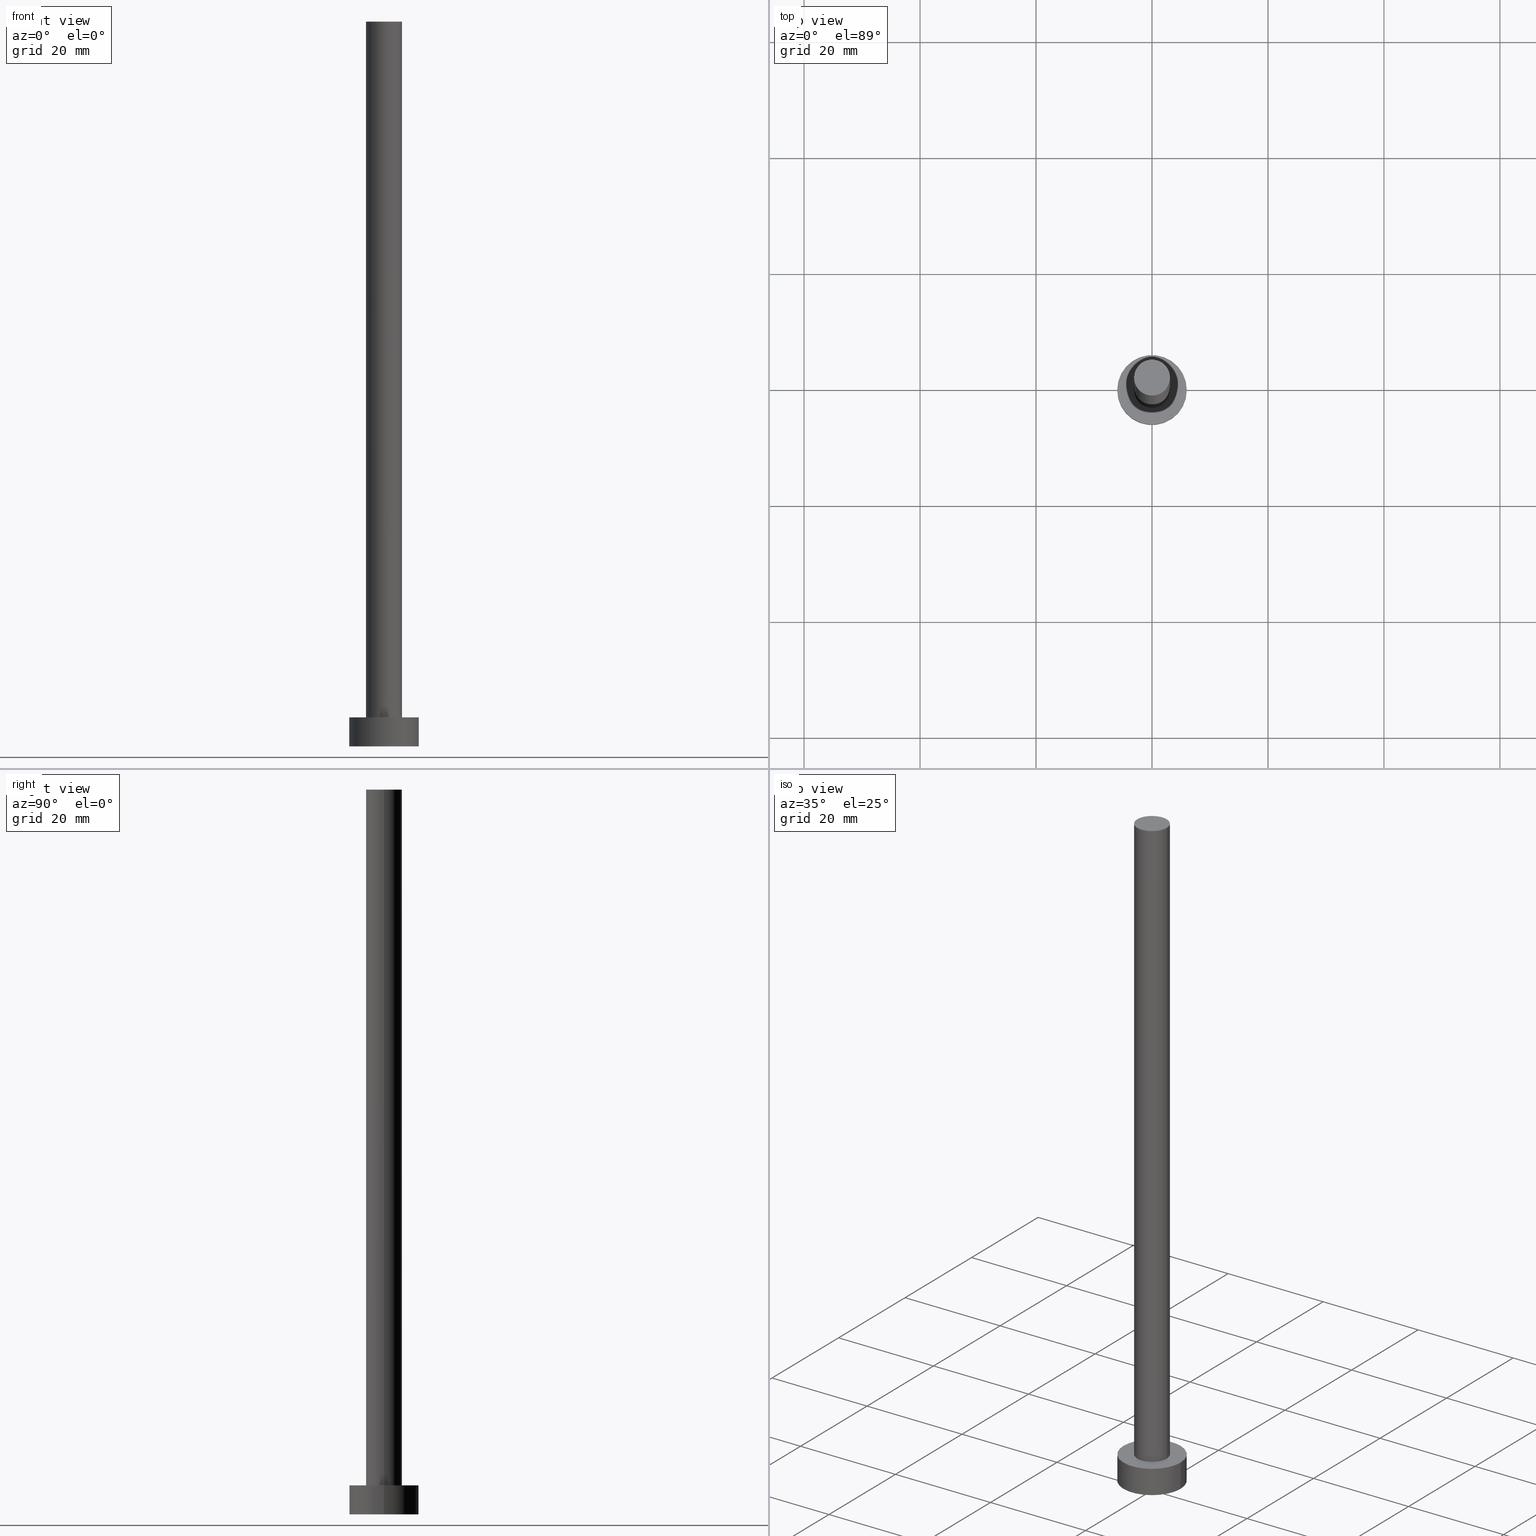
[diagram: canonical four-view strip — front | top / right | iso, engineering-drawing reading convention]
A machine part, canonical four-view strip (front | top / right | iso — engineering-drawing reading convention). The complete STEP part file that produces these views, byte-faithful:
ISO-10303-21;
HEADER;
FILE_DESCRIPTION (( 'STEP AP203' ),
    '1' );
FILE_NAME ('60bd.STEP',
    '2023-02-13T12:36:25',
    ( '' ),
    ( '' ),
    'SwSTEP 2.0',
    'SolidWorks 2019',
    '' );
FILE_SCHEMA (( 'CONFIG_CONTROL_DESIGN' ));
ENDSEC;

DATA;
#1 = CARTESIAN_POINT ( 'NONE',  ( 0.000000000000000000, 0.000000000000000000, 0.000000000000000000 ) ) ;
#2 = CIRCLE ( 'NONE', #139, 3.100000000000000089 ) ;
#3 = ORIENTED_EDGE ( 'NONE', *, *, #42, .T. ) ;
#4 = DIRECTION ( 'NONE',  ( 0.000000000000000000, 0.000000000000000000, 1.000000000000000000 ) ) ;
#5 = PRODUCT ( '60bd', '60bd', '', ( #183 ) ) ;
#6 = PERSON ( 'NEUR�EN�', 'NEUR�EN�', 'NEUR�EN�', ('NEUR�EN�'), ('NEUR�EN�'), ('NEUR�EN�') ) ;
#7 = CARTESIAN_POINT ( 'NONE',  ( 0.000000000000000000, 0.000000000000000000, 125.0000000000000000 ) ) ;
#8 = LINE ( 'NONE', #80, #126 ) ;
#9 = EDGE_CURVE ( 'NONE', #189, #236, #89, .T. ) ;
#10 = AXIS2_PLACEMENT_3D ( 'NONE', #157, #26, #44 ) ;
#11 = CARTESIAN_POINT ( 'NONE',  ( 0.000000000000000000, 0.000000000000000000, 125.0000000000000000 ) ) ;
#12 = APPROVAL_STATUS ( 'not_yet_approved' ) ;
#13 = ORIENTED_EDGE ( 'NONE', *, *, #55, .T. ) ;
#14 = CLOSED_SHELL ( 'NONE', ( #225, #150, #24, #76, #65, #185, #124 ) ) ;
#15 = DATE_TIME_ROLE ( 'creation_date' ) ;
#16 = COORDINATED_UNIVERSAL_TIME_OFFSET ( 1, 0, .AHEAD. ) ;
#17 = DIRECTION ( 'NONE',  ( 0.000000000000000000, 0.000000000000000000, 1.000000000000000000 ) ) ;
#18 = UNCERTAINTY_MEASURE_WITH_UNIT (LENGTH_MEASURE( 1.000000000000000082E-05 ), #159, 'distance_accuracy_value', 'NONE');
#19 = ORIENTED_EDGE ( 'NONE', *, *, #177, .F. ) ;
#20 = DIRECTION ( 'NONE',  ( -1.000000000000000000, 0.000000000000000000, 0.000000000000000000 ) ) ;
#21 = PRODUCT_DEFINITION_FORMATION_WITH_SPECIFIED_SOURCE ( 'LIBOVOLN�', '', #5, .NOT_KNOWN. ) ;
#22 = CARTESIAN_POINT ( 'NONE',  ( -6.000000000000000888, 0.000000000000000000, 5.000000000000000000 ) ) ;
#23 = VERTEX_POINT ( 'NONE', #253 ) ;
#24 = ADVANCED_FACE ( 'NONE', ( #56 ), #235, .T. ) ;
#25 = VECTOR ( 'NONE', #202, 1000.000000000000000 ) ;
#26 = DIRECTION ( 'NONE',  ( 0.000000000000000000, 0.000000000000000000, 1.000000000000000000 ) ) ;
#27 = APPROVAL ( #12, 'NEUR�EN�' ) ;
#28 = DIRECTION ( 'NONE',  ( 1.000000000000000000, 0.000000000000000000, 0.000000000000000000 ) ) ;
#29 = EDGE_LOOP ( 'NONE', ( #228, #170, #70, #250 ) ) ;
#30 = PERSON_AND_ORGANIZATION_ROLE ( 'creator' ) ;
#31 = COORDINATED_UNIVERSAL_TIME_OFFSET ( 1, 0, .AHEAD. ) ;
#32 = CC_DESIGN_APPROVAL ( #216, ( #50 ) ) ;
#33 = CALENDAR_DATE ( 2023, 13, 2 ) ;
#34 = FACE_OUTER_BOUND ( 'NONE', #167, .T. ) ;
#35 = LOCAL_TIME ( 13, 36, 25.00000000000000000, #121 ) ;
#36 = ORIENTED_EDGE ( 'NONE', *, *, #55, .F. ) ;
#37 = CARTESIAN_POINT ( 'NONE',  ( 0.000000000000000000, 0.000000000000000000, 5.000000000000000000 ) ) ;
#38 = CARTESIAN_POINT ( 'NONE',  ( 0.000000000000000000, 0.000000000000000000, 5.000000000000000000 ) ) ;
#39 = CARTESIAN_POINT ( 'NONE',  ( 3.100000000000000089, 3.796405077356794918E-16, 5.000000000000000000 ) ) ;
#40 = EDGE_CURVE ( 'NONE', #23, #236, #247, .T. ) ;
#41 = CYLINDRICAL_SURFACE ( 'NONE', #119, 3.100000000000000089 ) ;
#42 = EDGE_CURVE ( 'NONE', #189, #154, #53, .T. ) ;
#43 = CARTESIAN_POINT ( 'NONE',  ( -3.100000000000000089, 0.000000000000000000, 5.000000000000000000 ) ) ;
#44 = DIRECTION ( 'NONE',  ( 1.000000000000000000, 0.000000000000000000, 0.000000000000000000 ) ) ;
#45 = DIRECTION ( 'NONE',  ( 0.000000000000000000, 0.000000000000000000, 1.000000000000000000 ) ) ;
#46 = CALENDAR_DATE ( 2023, 13, 2 ) ;
#47 = DATE_AND_TIME ( #48, #179 ) ;
#48 = CALENDAR_DATE ( 2023, 13, 2 ) ;
#49 = CARTESIAN_POINT ( 'NONE',  ( 0.000000000000000000, 0.000000000000000000, 0.000000000000000000 ) ) ;
#50 = SECURITY_CLASSIFICATION ( '', '', #85 ) ;
#51 = ORIENTED_EDGE ( 'NONE', *, *, #229, .T. ) ;
#52 = DIRECTION ( 'NONE',  ( 0.000000000000000000, 0.000000000000000000, 1.000000000000000000 ) ) ;
#53 = CIRCLE ( 'NONE', #214, 6.000000000000000888 ) ;
#54 = ORIENTED_EDGE ( 'NONE', *, *, #147, .T. ) ;
#55 = EDGE_CURVE ( 'NONE', #186, #74, #203, .T. ) ;
#56 = FACE_OUTER_BOUND ( 'NONE', #29, .T. ) ;
#57 = DIRECTION ( 'NONE',  ( 1.000000000000000000, 0.000000000000000000, 0.000000000000000000 ) ) ;
#58 = DIRECTION ( 'NONE',  ( -0.000000000000000000, -0.000000000000000000, -1.000000000000000000 ) ) ;
#59 = CARTESIAN_POINT ( 'NONE',  ( 6.000000000000000888, 7.347880794884120722E-16, 5.000000000000000000 ) ) ;
#60 = PERSON_AND_ORGANIZATION ( #6, #122 ) ;
#61 = CC_DESIGN_DATE_AND_TIME_ASSIGNMENT ( #123, #248, ( #50 ) ) ;
#62 = APPLICATION_PROTOCOL_DEFINITION ( 'international standard', 'config_control_design', 1994, #175 ) ;
#63 = ORIENTED_EDGE ( 'NONE', *, *, #81, .T. ) ;
#64 = APPROVAL_DATE_TIME ( #169, #128 ) ;
#65 = ADVANCED_FACE ( 'NONE', ( #130 ), #112, .F. ) ;
#66 = AXIS2_PLACEMENT_3D ( 'NONE', #230, #152, #20 ) ;
#67 = CC_DESIGN_DATE_AND_TIME_ASSIGNMENT ( #47, #15, ( #114 ) ) ;
#68 = DIRECTION ( 'NONE',  ( 1.000000000000000000, 0.000000000000000000, 0.000000000000000000 ) ) ;
#69 = AXIS2_PLACEMENT_3D ( 'NONE', #71, #153, #215 ) ;
#70 = ORIENTED_EDGE ( 'NONE', *, *, #9, .T. ) ;
#71 = CARTESIAN_POINT ( 'NONE',  ( 0.000000000000000000, 0.000000000000000000, 5.000000000000000000 ) ) ;
#72 = FACE_OUTER_BOUND ( 'NONE', #172, .T. ) ;
#73 = AXIS2_PLACEMENT_3D ( 'NONE', #38, #219, #113 ) ;
#74 = VERTEX_POINT ( 'NONE', #196 ) ;
#75 = CARTESIAN_POINT ( 'NONE',  ( -6.000000000000000888, 0.000000000000000000, 5.000000000000000000 ) ) ;
#76 = ADVANCED_FACE ( 'NONE', ( #111, #72 ), #255, .T. ) ;
#77 = CARTESIAN_POINT ( 'NONE',  ( -6.000000000000000888, 0.000000000000000000, 0.000000000000000000 ) ) ;
#78 = FACE_OUTER_BOUND ( 'NONE', #193, .T. ) ;
#79 = CIRCLE ( 'NONE', #218, 6.000000000000000888 ) ;
#80 = CARTESIAN_POINT ( 'NONE',  ( 3.100000000000000089, 3.796405077356794918E-16, 125.0000000000000000 ) ) ;
#81 = EDGE_CURVE ( 'NONE', #87, #197, #234, .T. ) ;
#82 = CARTESIAN_POINT ( 'NONE',  ( -3.100000000000000089, 0.000000000000000000, 125.0000000000000000 ) ) ;
#83 = PERSON_AND_ORGANIZATION ( #6, #122 ) ;
#84 = APPROVAL_PERSON_ORGANIZATION ( #243, #216, #210 ) ;
#85 = SECURITY_CLASSIFICATION_LEVEL ( 'unclassified' ) ;
#86 = PERSON_AND_ORGANIZATION_ROLE ( 'classification_officer' ) ;
#87 = VERTEX_POINT ( 'NONE', #39 ) ;
#88 = EDGE_LOOP ( 'NONE', ( #125, #143 ) ) ;
#89 = LINE ( 'NONE', #22, #145 ) ;
#90 = DIRECTION ( 'NONE',  ( 0.000000000000000000, 0.000000000000000000, 1.000000000000000000 ) ) ;
#91 = LINE ( 'NONE', #92, #224 ) ;
#92 = CARTESIAN_POINT ( 'NONE',  ( 6.000000000000000888, 7.347880794884120722E-16, 5.000000000000000000 ) ) ;
#93 = FACE_OUTER_BOUND ( 'NONE', #176, .T. ) ;
#94 = AXIS2_PLACEMENT_3D ( 'NONE', #220, #95, #28 ) ;
#95 = DIRECTION ( 'NONE',  ( 0.000000000000000000, 0.000000000000000000, 1.000000000000000000 ) ) ;
#96 = CARTESIAN_POINT ( 'NONE',  ( 0.000000000000000000, 0.000000000000000000, 5.000000000000000000 ) ) ;
#97 = EDGE_CURVE ( 'NONE', #154, #23, #91, .T. ) ;
#98 = DIRECTION ( 'NONE',  ( -0.000000000000000000, -0.000000000000000000, -1.000000000000000000 ) ) ;
#99 = APPROVAL_ROLE ( '' ) ;
#100 = ORIENTED_EDGE ( 'NONE', *, *, #81, .F. ) ;
#101 = APPROVAL_STATUS ( 'not_yet_approved' ) ;
#102 = AXIS2_PLACEMENT_3D ( 'NONE', #118, #98, #133 ) ;
#103 = PERSON_AND_ORGANIZATION ( #6, #122 ) ;
#104 = PERSON_AND_ORGANIZATION_ROLE ( 'design_owner' ) ;
#105 = EDGE_LOOP ( 'NONE', ( #110, #54, #63, #149 ) ) ;
#106 = DATE_AND_TIME ( #33, #209 ) ;
#107 = AXIS2_PLACEMENT_3D ( 'NONE', #7, #4, #241 ) ;
#108 = CC_DESIGN_PERSON_AND_ORGANIZATION_ASSIGNMENT ( #245, #86, ( #50 ) ) ;
#109 = CC_DESIGN_SECURITY_CLASSIFICATION ( #50, ( #21 ) ) ;
#110 = ORIENTED_EDGE ( 'NONE', *, *, #141, .F. ) ;
#111 = FACE_BOUND ( 'NONE', #148, .T. ) ;
#112 = PLANE ( 'NONE',  #187 ) ;
#113 = DIRECTION ( 'NONE',  ( 1.000000000000000000, 0.000000000000000000, 0.000000000000000000 ) ) ;
#114 = PRODUCT_DEFINITION ( 'NEZN�M�', '', #21, #116 ) ;
#115 = CIRCLE ( 'NONE', #94, 6.000000000000000888 ) ;
#116 = DESIGN_CONTEXT ( 'detailed design', #175, 'design' ) ;
#117 = CARTESIAN_POINT ( 'NONE',  ( 0.000000000000000000, 0.000000000000000000, 5.000000000000000000 ) ) ;
#118 = CARTESIAN_POINT ( 'NONE',  ( 0.000000000000000000, 0.000000000000000000, 125.0000000000000000 ) ) ;
#119 = AXIS2_PLACEMENT_3D ( 'NONE', #11, #135, #242 ) ;
#120 = APPROVAL_DATE_TIME ( #140, #27 ) ;
#121 = COORDINATED_UNIVERSAL_TIME_OFFSET ( 1, 0, .AHEAD. ) ;
#122 = ORGANIZATION ( 'NEUR�EN�', 'NEUR�EN�', '' ) ;
#123 = DATE_AND_TIME ( #206, #199 ) ;
#124 = ADVANCED_FACE ( 'NONE', ( #34 ), #180, .T. ) ;
#125 = ORIENTED_EDGE ( 'NONE', *, *, #168, .F. ) ;
#126 = VECTOR ( 'NONE', #58, 1000.000000000000000 ) ;
#127 = DIRECTION ( 'NONE',  ( 1.000000000000000000, 0.000000000000000000, -0.000000000000000000 ) ) ;
#128 = APPROVAL ( #142, 'NEUR�EN�' ) ;
#129 = ORIENTED_EDGE ( 'NONE', *, *, #147, .F. ) ;
#130 = FACE_OUTER_BOUND ( 'NONE', #88, .T. ) ;
#131 = DIRECTION ( 'NONE',  ( 1.000000000000000000, 0.000000000000000000, 0.000000000000000000 ) ) ;
#132 =( NAMED_UNIT ( * ) PLANE_ANGLE_UNIT ( ) SI_UNIT ( $, .RADIAN. ) );
#133 = DIRECTION ( 'NONE',  ( -1.000000000000000000, 0.000000000000000000, 0.000000000000000000 ) ) ;
#134 = PRODUCT_DEFINITION_SHAPE ( 'NONE', 'NONE',  #114 ) ;
#135 = DIRECTION ( 'NONE',  ( -0.000000000000000000, -0.000000000000000000, -1.000000000000000000 ) ) ;
#136 = CC_DESIGN_APPROVAL ( #128, ( #114 ) ) ;
#137 = CARTESIAN_POINT ( 'NONE',  ( 0.000000000000000000, 0.000000000000000000, 125.0000000000000000 ) ) ;
#138 = FACE_OUTER_BOUND ( 'NONE', #105, .T. ) ;
#139 = AXIS2_PLACEMENT_3D ( 'NONE', #137, #45, #223 ) ;
#140 = DATE_AND_TIME ( #46, #165 ) ;
#141 = EDGE_CURVE ( 'NONE', #74, #186, #2, .T. ) ;
#142 = APPROVAL_STATUS ( 'not_yet_approved' ) ;
#143 = ORIENTED_EDGE ( 'NONE', *, *, #40, .F. ) ;
#144 = APPROVAL_DATE_TIME ( #106, #216 ) ;
#145 = VECTOR ( 'NONE', #212, 1000.000000000000000 ) ;
#146 = CALENDAR_DATE ( 2023, 13, 2 ) ;
#147 = EDGE_CURVE ( 'NONE', #74, #87, #8, .T. ) ;
#148 = EDGE_LOOP ( 'NONE', ( #19, #100 ) ) ;
#149 = ORIENTED_EDGE ( 'NONE', *, *, #229, .F. ) ;
#150 = ADVANCED_FACE ( 'NONE', ( #78 ), #239, .T. ) ;
#151 = CC_DESIGN_APPROVAL ( #27, ( #21 ) ) ;
#152 = DIRECTION ( 'NONE',  ( -0.000000000000000000, -0.000000000000000000, -1.000000000000000000 ) ) ;
#153 = DIRECTION ( 'NONE',  ( 0.000000000000000000, 0.000000000000000000, 1.000000000000000000 ) ) ;
#154 = VERTEX_POINT ( 'NONE', #59 ) ;
#155 = ORIENTED_EDGE ( 'NONE', *, *, #9, .F. ) ;
#156 = MANIFOLD_SOLID_BREP ( 'P�idat vysunut�m3', #14 ) ;
#157 = CARTESIAN_POINT ( 'NONE',  ( 0.000000000000000000, 0.000000000000000000, 0.000000000000000000 ) ) ;
#158 = CC_DESIGN_PERSON_AND_ORGANIZATION_ASSIGNMENT ( #208, #190, ( #114 ) ) ;
#159 =( LENGTH_UNIT ( ) NAMED_UNIT ( * ) SI_UNIT ( .MILLI., .METRE. ) );
#160 = APPLICATION_CONTEXT ( 'configuration controlled 3d designs of mechanical parts and assemblies' ) ;
#161 = DIRECTION ( 'NONE',  ( 1.000000000000000000, 0.000000000000000000, 0.000000000000000000 ) ) ;
#162 = DIRECTION ( 'NONE',  ( 0.000000000000000000, 0.000000000000000000, 1.000000000000000000 ) ) ;
#163 = COORDINATED_UNIVERSAL_TIME_OFFSET ( 1, 0, .AHEAD. ) ;
#164 = ORIENTED_EDGE ( 'NONE', *, *, #182, .T. ) ;
#165 = LOCAL_TIME ( 13, 36, 25.00000000000000000, #31 ) ;
#166 = PERSON_AND_ORGANIZATION_ROLE ( 'design_supplier' ) ;
#167 = EDGE_LOOP ( 'NONE', ( #13, #233 ) ) ;
#168 = EDGE_CURVE ( 'NONE', #236, #23, #115, .T. ) ;
#169 = DATE_AND_TIME ( #146, #35 ) ;
#170 = ORIENTED_EDGE ( 'NONE', *, *, #42, .F. ) ;
#171 = DIRECTION ( 'NONE',  ( 0.000000000000000000, 0.000000000000000000, 1.000000000000000000 ) ) ;
#172 = EDGE_LOOP ( 'NONE', ( #3, #164 ) ) ;
#173 = APPROVAL_PERSON_ORGANIZATION ( #60, #27, #188 ) ;
#174 = ORIENTED_EDGE ( 'NONE', *, *, #40, .T. ) ;
#175 = APPLICATION_CONTEXT ( 'configuration controlled 3d designs of mechanical parts and assemblies' ) ;
#176 = EDGE_LOOP ( 'NONE', ( #129, #36, #51, #231 ) ) ;
#177 = EDGE_CURVE ( 'NONE', #197, #87, #195, .T. ) ;
#178 = DIRECTION ( 'NONE',  ( -0.000000000000000000, -0.000000000000000000, -1.000000000000000000 ) ) ;
#179 = LOCAL_TIME ( 13, 36, 25.00000000000000000, #227 ) ;
#180 = PLANE ( 'NONE',  #107 ) ;
#181 = LINE ( 'NONE', #82, #25 ) ;
#182 = EDGE_CURVE ( 'NONE', #154, #189, #79, .T. ) ;
#183 = MECHANICAL_CONTEXT ( 'NONE', #160, 'mechanical' ) ;
#184 = DIRECTION ( 'NONE',  ( -0.000000000000000000, -0.000000000000000000, -1.000000000000000000 ) ) ;
#185 = ADVANCED_FACE ( 'NONE', ( #93 ), #198, .T. ) ;
#186 = VERTEX_POINT ( 'NONE', #221 ) ;
#187 = AXIS2_PLACEMENT_3D ( 'NONE', #1, #90, #127 ) ;
#188 = APPROVAL_ROLE ( '' ) ;
#189 = VERTEX_POINT ( 'NONE', #75 ) ;
#190 = PERSON_AND_ORGANIZATION_ROLE ( 'creator' ) ;
#191 = AXIS2_PLACEMENT_3D ( 'NONE', #211, #52, #68 ) ;
#192 = PRODUCT_RELATED_PRODUCT_CATEGORY ( 'detail', '', ( #5 ) ) ;
#193 = EDGE_LOOP ( 'NONE', ( #194, #213, #174, #155 ) ) ;
#194 = ORIENTED_EDGE ( 'NONE', *, *, #182, .F. ) ;
#195 = CIRCLE ( 'NONE', #205, 3.100000000000000089 ) ;
#196 = CARTESIAN_POINT ( 'NONE',  ( 3.100000000000000089, 3.796405077356794918E-16, 125.0000000000000000 ) ) ;
#197 = VERTEX_POINT ( 'NONE', #43 ) ;
#198 = CYLINDRICAL_SURFACE ( 'NONE', #102, 3.100000000000000089 ) ;
#199 = LOCAL_TIME ( 13, 36, 25.00000000000000000, #163 ) ;
#200 = APPLICATION_PROTOCOL_DEFINITION ( 'international standard', 'config_control_design', 1994, #160 ) ;
#201 =( NAMED_UNIT ( * ) SI_UNIT ( $, .STERADIAN. ) SOLID_ANGLE_UNIT ( ) );
#202 = DIRECTION ( 'NONE',  ( -0.000000000000000000, -0.000000000000000000, -1.000000000000000000 ) ) ;
#203 = CIRCLE ( 'NONE', #191, 3.100000000000000089 ) ;
#204 = DIRECTION ( 'NONE',  ( 0.000000000000000000, 0.000000000000000000, 1.000000000000000000 ) ) ;
#205 = AXIS2_PLACEMENT_3D ( 'NONE', #238, #204, #161 ) ;
#206 = CALENDAR_DATE ( 2023, 13, 2 ) ;
#207 = PERSON_AND_ORGANIZATION ( #6, #122 ) ;
#208 = PERSON_AND_ORGANIZATION ( #6, #122 ) ;
#209 = LOCAL_TIME ( 13, 36, 25.00000000000000000, #16 ) ;
#210 = APPROVAL_ROLE ( '' ) ;
#211 = CARTESIAN_POINT ( 'NONE',  ( 0.000000000000000000, 0.000000000000000000, 125.0000000000000000 ) ) ;
#212 = DIRECTION ( 'NONE',  ( -0.000000000000000000, -0.000000000000000000, -1.000000000000000000 ) ) ;
#213 = ORIENTED_EDGE ( 'NONE', *, *, #97, .T. ) ;
#214 = AXIS2_PLACEMENT_3D ( 'NONE', #37, #17, #251 ) ;
#215 = DIRECTION ( 'NONE',  ( 1.000000000000000000, 0.000000000000000000, -0.000000000000000000 ) ) ;
#216 = APPROVAL ( #101, 'NEUR�EN�' ) ;
#217 = ADVANCED_BREP_SHAPE_REPRESENTATION ( '60bd', ( #156, #10 ), #244 ) ;
#218 = AXIS2_PLACEMENT_3D ( 'NONE', #117, #162, #57 ) ;
#219 = DIRECTION ( 'NONE',  ( 0.000000000000000000, 0.000000000000000000, 1.000000000000000000 ) ) ;
#220 = CARTESIAN_POINT ( 'NONE',  ( 0.000000000000000000, 0.000000000000000000, 0.000000000000000000 ) ) ;
#221 = CARTESIAN_POINT ( 'NONE',  ( -3.100000000000000089, 0.000000000000000000, 125.0000000000000000 ) ) ;
#222 = DIRECTION ( 'NONE',  ( -1.000000000000000000, 0.000000000000000000, 0.000000000000000000 ) ) ;
#223 = DIRECTION ( 'NONE',  ( 1.000000000000000000, 0.000000000000000000, 0.000000000000000000 ) ) ;
#224 = VECTOR ( 'NONE', #178, 1000.000000000000000 ) ;
#225 = ADVANCED_FACE ( 'NONE', ( #138 ), #41, .T. ) ;
#226 = SHAPE_DEFINITION_REPRESENTATION ( #134, #217 ) ;
#227 = COORDINATED_UNIVERSAL_TIME_OFFSET ( 1, 0, .AHEAD. ) ;
#228 = ORIENTED_EDGE ( 'NONE', *, *, #97, .F. ) ;
#229 = EDGE_CURVE ( 'NONE', #186, #197, #181, .T. ) ;
#230 = CARTESIAN_POINT ( 'NONE',  ( 0.000000000000000000, 0.000000000000000000, 5.000000000000000000 ) ) ;
#231 = ORIENTED_EDGE ( 'NONE', *, *, #177, .T. ) ;
#232 = CC_DESIGN_PERSON_AND_ORGANIZATION_ASSIGNMENT ( #207, #30, ( #21 ) ) ;
#233 = ORIENTED_EDGE ( 'NONE', *, *, #141, .T. ) ;
#234 = CIRCLE ( 'NONE', #73, 3.100000000000000089 ) ;
#235 = CYLINDRICAL_SURFACE ( 'NONE', #66, 6.000000000000000888 ) ;
#236 = VERTEX_POINT ( 'NONE', #77 ) ;
#237 = CC_DESIGN_PERSON_AND_ORGANIZATION_ASSIGNMENT ( #103, #166, ( #21 ) ) ;
#238 = CARTESIAN_POINT ( 'NONE',  ( 0.000000000000000000, 0.000000000000000000, 5.000000000000000000 ) ) ;
#239 = CYLINDRICAL_SURFACE ( 'NONE', #240, 6.000000000000000888 ) ;
#240 = AXIS2_PLACEMENT_3D ( 'NONE', #96, #184, #222 ) ;
#241 = DIRECTION ( 'NONE',  ( 1.000000000000000000, 0.000000000000000000, -0.000000000000000000 ) ) ;
#242 = DIRECTION ( 'NONE',  ( -1.000000000000000000, 0.000000000000000000, 0.000000000000000000 ) ) ;
#243 = PERSON_AND_ORGANIZATION ( #6, #122 ) ;
#244 =( GEOMETRIC_REPRESENTATION_CONTEXT ( 3 ) GLOBAL_UNCERTAINTY_ASSIGNED_CONTEXT ( ( #18 ) ) GLOBAL_UNIT_ASSIGNED_CONTEXT ( ( #159, #132, #201 ) ) REPRESENTATION_CONTEXT ( 'NONE', 'WORKASPACE' ) );
#245 = PERSON_AND_ORGANIZATION ( #6, #122 ) ;
#246 = PERSON_AND_ORGANIZATION ( #6, #122 ) ;
#247 = CIRCLE ( 'NONE', #252, 6.000000000000000888 ) ;
#248 = DATE_TIME_ROLE ( 'classification_date' ) ;
#249 = CC_DESIGN_PERSON_AND_ORGANIZATION_ASSIGNMENT ( #246, #104, ( #5 ) ) ;
#250 = ORIENTED_EDGE ( 'NONE', *, *, #168, .T. ) ;
#251 = DIRECTION ( 'NONE',  ( 1.000000000000000000, 0.000000000000000000, 0.000000000000000000 ) ) ;
#252 = AXIS2_PLACEMENT_3D ( 'NONE', #49, #171, #131 ) ;
#253 = CARTESIAN_POINT ( 'NONE',  ( 6.000000000000000888, 7.347880794884120722E-16, 0.000000000000000000 ) ) ;
#254 = APPROVAL_PERSON_ORGANIZATION ( #83, #128, #99 ) ;
#255 = PLANE ( 'NONE',  #69 ) ;
ENDSEC;
END-ISO-10303-21;
